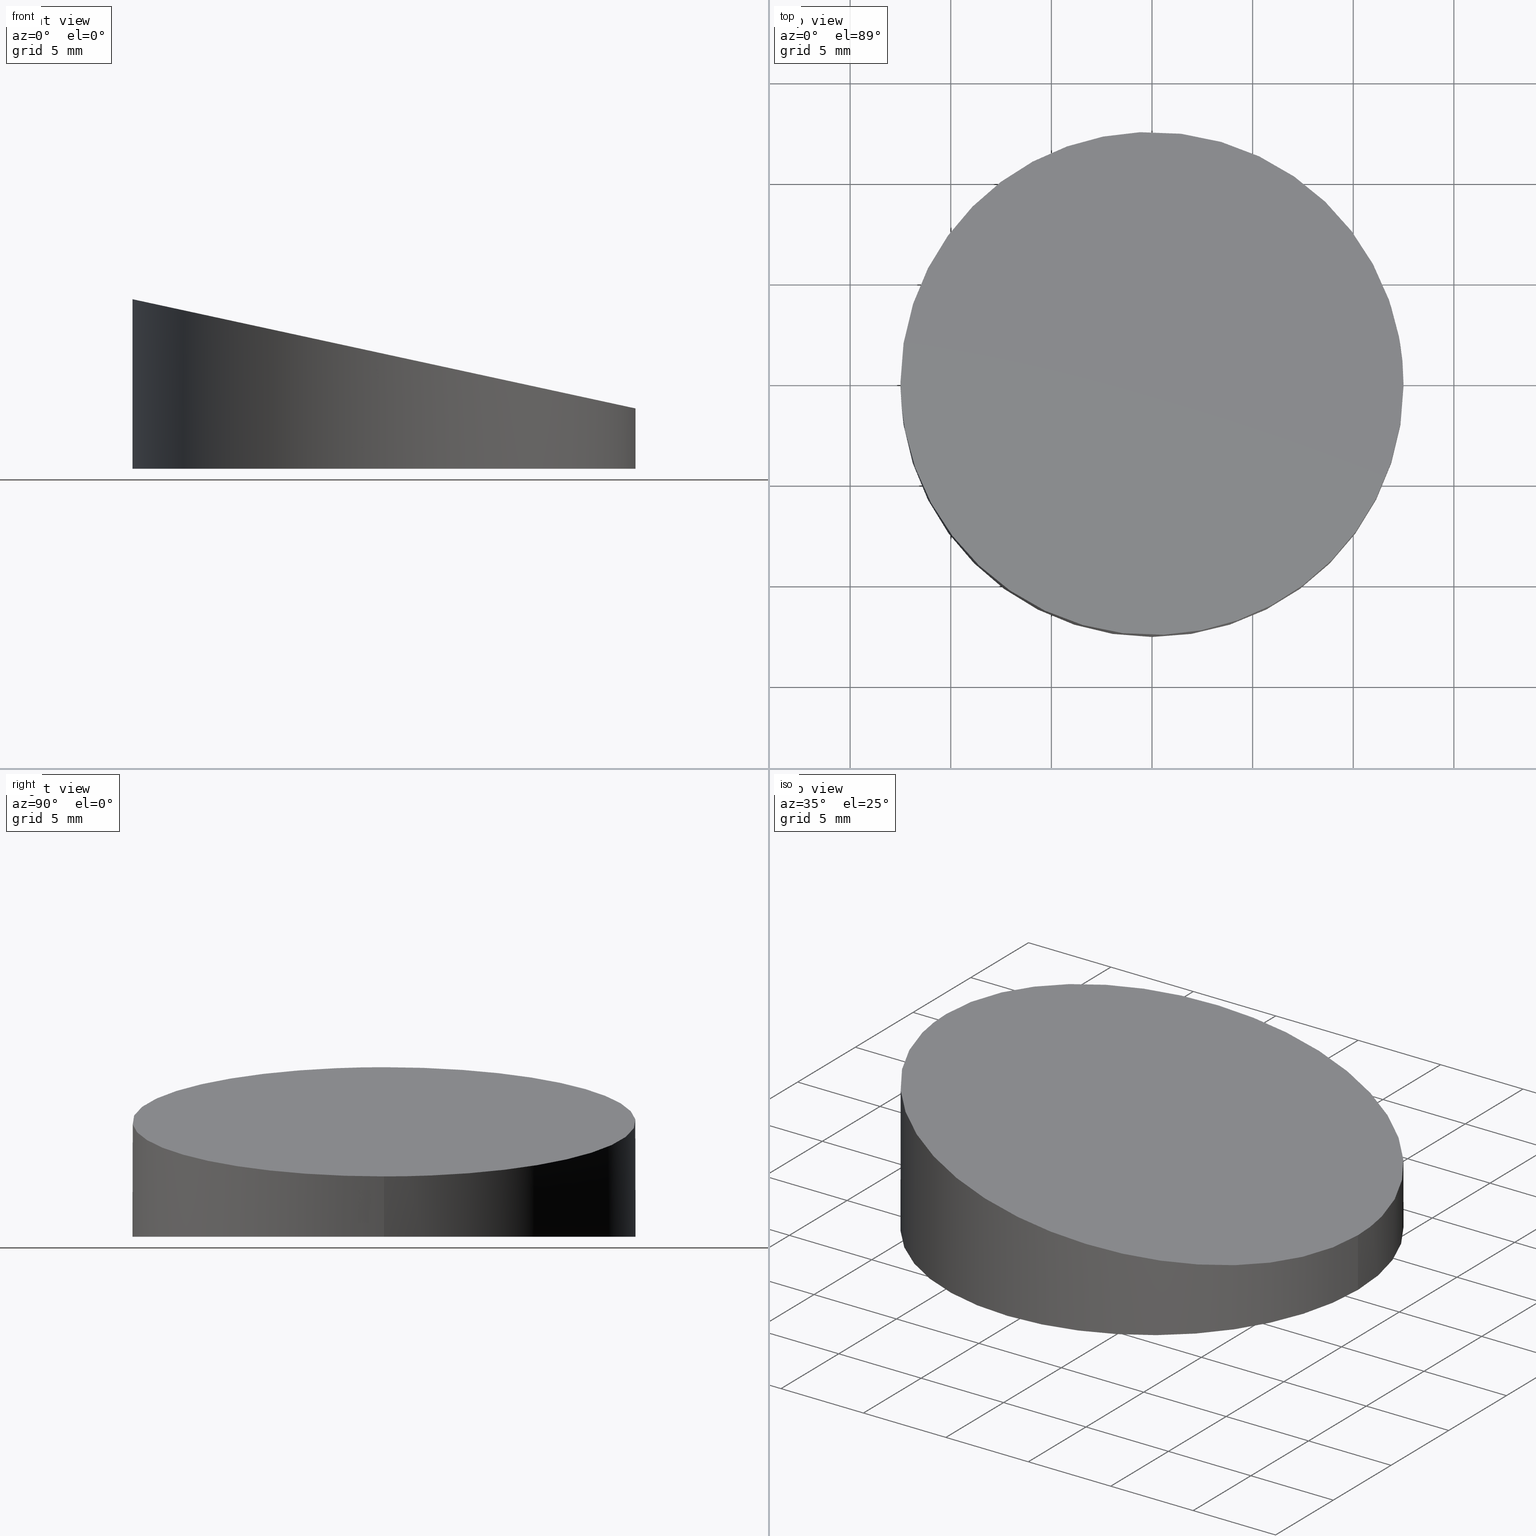
[diagram: canonical four-view strip — front | top / right | iso, engineering-drawing reading convention]
A machine part, canonical four-view strip (front | top / right | iso — engineering-drawing reading convention). The complete STEP part file that produces these views, byte-faithful:
ISO-10303-21;
HEADER;
FILE_DESCRIPTION (( 'STEP AP203' ),
    '1' );
FILE_NAME ('373536.STEP',
    '2019-07-24T09:27:33',
    ( '' ),
    ( '' ),
    'SwSTEP 2.0',
    'SolidWorks 2016',
    '' );
FILE_SCHEMA (( 'CONFIG_CONTROL_DESIGN' ));
ENDSEC;

DATA;
#1 = CALENDAR_DATE ( 2019, 24, 7 ) ;
#2 = APPROVAL_STATUS ( 'not_yet_approved' ) ;
#3 = SECURITY_CLASSIFICATION_LEVEL ( 'unclassified' ) ;
#4 = APPROVAL_STATUS ( 'not_yet_approved' ) ;
#5 = DATE_AND_TIME ( #152, #37 ) ;
#6 = PERSON_AND_ORGANIZATION_ROLE ( 'creator' ) ;
#7 = PERSON_AND_ORGANIZATION_ROLE ( 'design_owner' ) ;
#8 = CC_DESIGN_SECURITY_CLASSIFICATION ( #174, ( #60 ) ) ;
#9 = LOCAL_TIME ( 17, 27, 33.00000000000000000, #70 ) ;
#10 = PRODUCT_DEFINITION_SHAPE ( 'NONE', 'NONE',  #162 ) ;
#11 = LOCAL_TIME ( 17, 27, 33.00000000000000000, #46 ) ;
#12 = FACE_OUTER_BOUND ( 'NONE', #56, .T. ) ;
#13 = CARTESIAN_POINT ( 'NONE',  ( 0.0000000000000000000, 0.0000000000000000000, 0.0000000000000000000 ) ) ;
#14 = DIRECTION ( 'NONE',  ( -0.2121776721564465600, 0.0000000000000000000, -0.9772311064626788600 ) ) ;
#15 = APPROVAL_DATE_TIME ( #90, #96 ) ;
#16 = FACE_OUTER_BOUND ( 'NONE', #145, .T. ) ;
#17 = CARTESIAN_POINT ( 'NONE',  ( 12.49999999999999600, 1.530808498934191100E-015, 0.0000000000000000000 ) ) ;
#18 = CC_DESIGN_APPROVAL ( #220, ( #21 ) ) ;
#19 = MECHANICAL_CONTEXT ( 'NONE', #40, 'mechanical' ) ;
#20 = DATE_TIME_ROLE ( 'classification_date' ) ;
#21 = PRODUCT_DEFINITION ( 'δ֪', '', #60, #53 ) ;
#22 = PERSON_AND_ORGANIZATION_ROLE ( 'creator' ) ;
#23 = CARTESIAN_POINT ( 'NONE',  ( 12.49999999999999600, 1.530808498934191100E-015, 10.00000000000000000 ) ) ;
#24 = VECTOR ( 'NONE', #67, 1000.000000000000000 ) ;
#25 = DATE_AND_TIME ( #41, #52 ) ;
#26 = LINE ( 'NONE', #171, #79 ) ;
#27 = CC_DESIGN_DATE_AND_TIME_ASSIGNMENT ( #59, #165, ( #174 ) ) ;
#28 = PRODUCT_DEFINITION_SHAPE ( 'NONE', 'NONE',  #21 ) ;
#29 = CC_DESIGN_PERSON_AND_ORGANIZATION_ASSIGNMENT ( #211, #202, ( #162 ) ) ;
#30 = PLANE ( 'NONE',  #183 ) ;
#31 = CALENDAR_DATE ( 2019, 24, 7 ) ;
#32 = PERSON_AND_ORGANIZATION ( #85, #150 ) ;
#33 = CYLINDRICAL_SURFACE ( 'NONE', #102, 12.49999999999999600 ) ;
#34 = CC_DESIGN_DATE_AND_TIME_ASSIGNMENT ( #25, #223, ( #21 ) ) ;
#35 = COORDINATED_UNIVERSAL_TIME_OFFSET ( 8, 0, .AHEAD. ) ;
#36 = LINE ( 'NONE', #23, #24 ) ;
#37 = LOCAL_TIME ( 17, 27, 33.00000000000000000, #177 ) ;
#38 = APPLICATION_PROTOCOL_DEFINITION ( 'international standard', 'config_control_design', 1994, #141 ) ;
#39 = DIRECTION ( 'NONE',  ( 0.0000000000000000000, 0.0000000000000000000, 1.000000000000000000 ) ) ;
#40 = APPLICATION_CONTEXT ( 'configuration controlled 3d designs of mechanical parts and assemblies' ) ;
#41 = CALENDAR_DATE ( 2019, 24, 7 ) ;
#42 = ORIENTED_EDGE ( 'NONE', *, *, #189, .F. ) ;
#43 = APPROVAL_STATUS ( 'not_yet_approved' ) ;
#44 = SECURITY_CLASSIFICATION ( '', '', #3 ) ;
#45 = APPROVAL_DATE_TIME ( #218, #132 ) ;
#46 = COORDINATED_UNIVERSAL_TIME_OFFSET ( 8, 0, .AHEAD. ) ;
#47 = CC_DESIGN_DATE_AND_TIME_ASSIGNMENT ( #161, #221, ( #162 ) ) ;
#48 = COORDINATED_UNIVERSAL_TIME_OFFSET ( 8, 0, .AHEAD. ) ;
#49 = ORIENTED_EDGE ( 'NONE', *, *, #233, .F. ) ;
#50 = CC_DESIGN_APPROVAL ( #140, ( #174 ) ) ;
#51 = ADVANCED_FACE ( 'NONE', ( #12 ), #155, .F. ) ;
#52 = LOCAL_TIME ( 17, 27, 33.00000000000000000, #98 ) ;
#53 = DESIGN_CONTEXT ( 'detailed design', #81, 'design' ) ;
#54 = CARTESIAN_POINT ( 'NONE',  ( 0.0000000000000000000, 0.0000000000000000000, 0.0000000000000000000 ) ) ;
#55 = APPROVAL_PERSON_ORGANIZATION ( #228, #140, #225 ) ;
#56 = EDGE_LOOP ( 'NONE', ( #42, #231 ) ) ;
#57 = CARTESIAN_POINT ( 'NONE',  ( 0.0000000000000000000, 0.0000000000000000000, 0.0000000000000000000 ) ) ;
#58 = ADVANCED_FACE ( 'NONE', ( #16 ), #30, .F. ) ;
#59 = DATE_AND_TIME ( #1, #215 ) ;
#60 = PRODUCT_DEFINITION_FORMATION_WITH_SPECIFIED_SOURCE ( '�κ�', '', #114, .NOT_KNOWN. ) ;
#61 = APPROVAL_ROLE ( '' ) ;
#62 = DIRECTION ( 'NONE',  ( -1.000000000000000000, 0.0000000000000000000, 0.0000000000000000000 ) ) ;
#63 = PERSON_AND_ORGANIZATION ( #85, #150 ) ;
#64 = APPROVAL_ROLE ( '' ) ;
#65 = MANIFOLD_SOLID_BREP ( '�г�-����1', #113 ) ;
#66 = CC_DESIGN_APPROVAL ( #96, ( #162 ) ) ;
#67 = DIRECTION ( 'NONE',  ( -0.0000000000000000000, -0.0000000000000000000, -1.000000000000000000 ) ) ;
#68 = EDGE_LOOP ( 'NONE', ( #49, #181, #92, #166 ) ) ;
#69 = APPROVAL_PERSON_ORGANIZATION ( #244, #132, #160 ) ;
#70 = COORDINATED_UNIVERSAL_TIME_OFFSET ( 8, 0, .AHEAD. ) ;
#71 = AXIS2_PLACEMENT_3D ( 'NONE', #253, #236, #122 ) ;
#72 = CC_DESIGN_APPROVAL ( #107, ( #76 ) ) ;
#73 = CARTESIAN_POINT ( 'NONE',  ( -12.49999999999999600, 0.0000000000000000000, 8.428032088654909200 ) ) ;
#74 = DATE_AND_TIME ( #126, #250 ) ;
#75 = CARTESIAN_POINT ( 'NONE',  ( -12.50000000000000500, 25.00000000000000000, 8.428032088654910900 ) ) ;
#76 = PRODUCT_DEFINITION_FORMATION_WITH_SPECIFIED_SOURCE ( '�κ�', '', #111, .NOT_KNOWN. ) ;
#77 = CARTESIAN_POINT ( 'NONE',  ( -12.49999999999999600, 0.0000000000000000000, 8.428032088654909200 ) ) ;
#78 = ADVANCED_BREP_SHAPE_REPRESENTATION ( '373536', ( #65, #217 ), #240 ) ;
#79 = VECTOR ( 'NONE', #151, 1000.000000000000000 ) ;
#80 = PERSON_AND_ORGANIZATION ( #85, #150 ) ;
#81 = APPLICATION_CONTEXT ( 'configuration controlled 3d designs of mechanical parts and assemblies' ) ;
#82 = APPLICATION_CONTEXT ( 'configuration controlled 3d designs of mechanical parts and assemblies' ) ;
#83 = CARTESIAN_POINT ( 'NONE',  ( 0.0000000000000000000, 0.0000000000000000000, 0.0000000000000000000 ) ) ;
#84 = EDGE_CURVE ( 'NONE', #173, #185, #26, .T. ) ;
#85 = PERSON ( 'δָ��', 'δָ��', 'δָ��', ('δָ��'), ('δָ��'), ('δָ��') ) ;
#86 = APPROVAL_PERSON_ORGANIZATION ( #94, #192, #106 ) ;
#87 = DIRECTION ( 'NONE',  ( 1.000000000000000000, 0.0000000000000000000, 0.0000000000000000000 ) ) ;
#88 = CC_DESIGN_PERSON_AND_ORGANIZATION_ASSIGNMENT ( #105, #142, ( #44 ) ) ;
#89 = PERSON_AND_ORGANIZATION ( #85, #150 ) ;
#90 = DATE_AND_TIME ( #139, #9 ) ;
#91 = AXIS2_PLACEMENT_3D ( 'NONE', #57, #195, #235 ) ;
#92 = ORIENTED_EDGE ( 'NONE', *, *, #84, .T. ) ;
#93 = DIRECTION ( 'NONE',  ( 1.000000000000000000, 0.0000000000000000000, -0.0000000000000000000 ) ) ;
#94 = PERSON_AND_ORGANIZATION ( #85, #150 ) ;
#95 = CARTESIAN_POINT ( 'NONE',  ( 12.49999999999999600, 1.530808498934191100E-015, 3.000000000000000000 ) ) ;
#96 = APPROVAL ( #176, 'δָ��' ) ;
#97 = DIRECTION ( 'NONE',  ( 0.0000000000000000000, 0.0000000000000000000, 1.000000000000000000 ) ) ;
#98 = COORDINATED_UNIVERSAL_TIME_OFFSET ( 8, 0, .AHEAD. ) ;
#99 = ORIENTED_EDGE ( 'NONE', *, *, #233, .T. ) ;
#100 = AXIS2_PLACEMENT_3D ( 'NONE', #13, #117, #93 ) ;
#101 = APPROVAL_PERSON_ORGANIZATION ( #89, #96, #61 ) ;
#102 = AXIS2_PLACEMENT_3D ( 'NONE', #243, #178, #62 ) ;
#103 = APPROVAL_ROLE ( '' ) ;
#104 = APPLICATION_PROTOCOL_DEFINITION ( 'international standard', 'config_control_design', 1994, #82 ) ;
#105 = PERSON_AND_ORGANIZATION ( #85, #150 ) ;
#106 = APPROVAL_ROLE ( '' ) ;
#107 = APPROVAL ( #203, 'δָ��' ) ;
#108 = DIRECTION ( 'NONE',  ( 1.000000000000000000, 0.0000000000000000000, 0.0000000000000000000 ) ) ;
#109 = APPLICATION_PROTOCOL_DEFINITION ( 'international standard', 'config_control_design', 1994, #40 ) ;
#110 = PERSON_AND_ORGANIZATION ( #85, #150 ) ;
#111 = PRODUCT ( '373536', '373536', '', ( #130 ) ) ;
#112 = APPROVAL_DATE_TIME ( #149, #107 ) ;
#113 = CLOSED_SHELL ( 'NONE', ( #219, #212, #51, #58 ) ) ;
#114 = PRODUCT ( '373536', '373536', '', ( #19 ) ) ;
#115 = CIRCLE ( 'NONE', #170, 12.49999999999999600 ) ;
#116 = CC_DESIGN_PERSON_AND_ORGANIZATION_ASSIGNMENT ( #134, #6, ( #60 ) ) ;
#117 = DIRECTION ( 'NONE',  ( 0.0000000000000000000, 0.0000000000000000000, 1.000000000000000000 ) ) ;
#118 = LOCAL_TIME ( 17, 27, 33.00000000000000000, #187 ) ;
#119 = VERTEX_POINT ( 'NONE', #17 ) ;
#120 = CARTESIAN_POINT ( 'NONE',  ( 12.49999999999999600, -25.00000000000000000, 3.000000000000000000 ) ) ;
#121 = CC_DESIGN_PERSON_AND_ORGANIZATION_ASSIGNMENT ( #156, #239, ( #76 ) ) ;
#122 = DIRECTION ( 'NONE',  ( -1.000000000000000000, 0.0000000000000000000, 0.0000000000000000000 ) ) ;
#123 = ORIENTED_EDGE ( 'NONE', *, *, #193, .T. ) ;
#124 = DESIGN_CONTEXT ( 'detailed design', #141, 'design' ) ;
#125 = PERSON_AND_ORGANIZATION_ROLE ( 'design_supplier' ) ;
#126 = CALENDAR_DATE ( 2019, 24, 7 ) ;
#127 = VERTEX_POINT ( 'NONE', #175 ) ;
#128 = APPLICATION_PROTOCOL_DEFINITION ( 'international standard', 'config_control_design', 1994, #81 ) ;
#129 =( NAMED_UNIT ( * ) SI_UNIT ( $, .STERADIAN. ) SOLID_ANGLE_UNIT ( ) );
#130 = MECHANICAL_CONTEXT ( 'NONE', #82, 'mechanical' ) ;
#131 = DATE_AND_TIME ( #205, #252 ) ;
#132 = APPROVAL ( #4, 'δָ��' ) ;
#133 = LOCAL_TIME ( 17, 27, 33.00000000000000000, #199 ) ;
#134 = PERSON_AND_ORGANIZATION ( #85, #150 ) ;
#135 = CC_DESIGN_PERSON_AND_ORGANIZATION_ASSIGNMENT ( #63, #147, ( #114 ) ) ;
#136 = FACE_OUTER_BOUND ( 'NONE', #242, .T. ) ;
#137 = DIRECTION ( 'NONE',  ( -0.9772311064626787400, 0.0000000000000000000, 0.2121776721564465300 ) ) ;
#138 = PERSON_AND_ORGANIZATION ( #85, #150 ) ;
#139 = CALENDAR_DATE ( 2019, 24, 7 ) ;
#140 = APPROVAL ( #43, 'δָ��' ) ;
#141 = APPLICATION_CONTEXT ( 'configuration controlled 3d designs of mechanical parts and assemblies' ) ;
#142 = PERSON_AND_ORGANIZATION_ROLE ( 'classification_officer' ) ;
#143 = PERSON_AND_ORGANIZATION_ROLE ( 'classification_officer' ) ;
#144 = CALENDAR_DATE ( 2019, 24, 7 ) ;
#145 = EDGE_LOOP ( 'NONE', ( #248, #163 ) ) ;
#146 = CC_DESIGN_PERSON_AND_ORGANIZATION_ASSIGNMENT ( #32, #125, ( #76 ) ) ;
#147 = PERSON_AND_ORGANIZATION_ROLE ( 'design_owner' ) ;
#148 = EDGE_CURVE ( 'NONE', #173, #127, #198, .T. ) ;
#149 = DATE_AND_TIME ( #200, #11 ) ;
#150 = ORGANIZATION ( 'δָ��', 'δָ��', '' ) ;
#151 = DIRECTION ( 'NONE',  ( -0.0000000000000000000, -0.0000000000000000000, -1.000000000000000000 ) ) ;
#152 = CALENDAR_DATE ( 2019, 24, 7 ) ;
#153 = CC_DESIGN_APPROVAL ( #132, ( #44 ) ) ;
#154 = CARTESIAN_POINT ( 'NONE',  ( -12.49999999999999600, 0.0000000000000000000, 8.428032088654909200 ) ) ;
#155 = PLANE ( 'NONE',  #100 ) ;
#156 = PERSON_AND_ORGANIZATION ( #85, #150 ) ;
#157 = ORIENTED_EDGE ( 'NONE', *, *, #84, .F. ) ;
#158 = CC_DESIGN_DATE_AND_TIME_ASSIGNMENT ( #131, #20, ( #44 ) ) ;
#159 = CALENDAR_DATE ( 2019, 24, 7 ) ;
#160 = APPROVAL_ROLE ( '' ) ;
#161 = DATE_AND_TIME ( #159, #118 ) ;
#162 = PRODUCT_DEFINITION ( 'δ֪', '', #76, #124 ) ;
#163 = ORIENTED_EDGE ( 'NONE', *, *, #210, .F. ) ;
#164 =( LENGTH_UNIT ( ) NAMED_UNIT ( * ) SI_UNIT ( .MILLI., .METRE. ) );
#165 = DATE_TIME_ROLE ( 'classification_date' ) ;
#166 = ORIENTED_EDGE ( 'NONE', *, *, #189, .T. ) ;
#167 = PRODUCT_RELATED_PRODUCT_CATEGORY ( 'detail', '', ( #111 ) ) ;
#168 = APPROVAL_DATE_TIME ( #5, #192 ) ;
#169 = CC_DESIGN_SECURITY_CLASSIFICATION ( #44, ( #76 ) ) ;
#170 = AXIS2_PLACEMENT_3D ( 'NONE', #54, #97, #234 ) ;
#171 = CARTESIAN_POINT ( 'NONE',  ( -12.49999999999999600, 0.0000000000000000000, 10.00000000000000000 ) ) ;
#172 = DATE_AND_TIME ( #144, #194 ) ;
#173 = VERTEX_POINT ( 'NONE', #154 ) ;
#174 = SECURITY_CLASSIFICATION ( '', '', #206 ) ;
#175 = CARTESIAN_POINT ( 'NONE',  ( 12.49999999999999600, 1.530808498934191100E-015, 3.000000000000000000 ) ) ;
#176 = APPROVAL_STATUS ( 'not_yet_approved' ) ;
#177 = COORDINATED_UNIVERSAL_TIME_OFFSET ( 8, 0, .AHEAD. ) ;
#178 = DIRECTION ( 'NONE',  ( -0.0000000000000000000, -0.0000000000000000000, -1.000000000000000000 ) ) ;
#179 = UNCERTAINTY_MEASURE_WITH_UNIT (LENGTH_MEASURE( 1.000000000000000100E-005 ), #164, 'distance_accuracy_value', 'NONE');
#180 = AXIS2_PLACEMENT_3D ( 'NONE', #227, #39, #108 ) ;
#181 = ORIENTED_EDGE ( 'NONE', *, *, #210, .T. ) ;
#182 =( NAMED_UNIT ( * ) PLANE_ANGLE_UNIT ( ) SI_UNIT ( $, .RADIAN. ) );
#183 = AXIS2_PLACEMENT_3D ( 'NONE', #120, #14, #137 ) ;
#184 = APPROVAL_DATE_TIME ( #74, #220 ) ;
#185 = VERTEX_POINT ( 'NONE', #190 ) ;
#186 = CC_DESIGN_PERSON_AND_ORGANIZATION_ASSIGNMENT ( #138, #143, ( #174 ) ) ;
#187 = COORDINATED_UNIVERSAL_TIME_OFFSET ( 8, 0, .AHEAD. ) ;
#188 = CIRCLE ( 'NONE', #91, 12.49999999999999600 ) ;
#189 = EDGE_CURVE ( 'NONE', #185, #119, #115, .T. ) ;
#190 = CARTESIAN_POINT ( 'NONE',  ( -12.49999999999999600, 0.0000000000000000000, 0.0000000000000000000 ) ) ;
#191 = PERSON_AND_ORGANIZATION ( #85, #150 ) ;
#192 = APPROVAL ( #224, 'δָ��' ) ;
#193 = EDGE_CURVE ( 'NONE', #119, #185, #188, .T. ) ;
#194 = LOCAL_TIME ( 17, 27, 33.00000000000000000, #213 ) ;
#195 = DIRECTION ( 'NONE',  ( 0.0000000000000000000, 0.0000000000000000000, 1.000000000000000000 ) ) ;
#196 = ORIENTED_EDGE ( 'NONE', *, *, #148, .T. ) ;
#197 = CARTESIAN_POINT ( 'NONE',  ( 12.50000000000000000, -25.00000000000000000, 3.000000000000000400 ) ) ;
#198 =( BOUNDED_CURVE ( )  B_SPLINE_CURVE ( 3, ( #73, #75, #251, #95 ),
 .UNSPECIFIED., .F., .F. ) 
 B_SPLINE_CURVE_WITH_KNOTS ( ( 4, 4 ),
 ( 3.141592653589793100, 6.283185307179586200 ),
 .UNSPECIFIED. ) 
 CURVE ( )  GEOMETRIC_REPRESENTATION_ITEM ( )  RATIONAL_B_SPLINE_CURVE ( ( 1.000000000000000000, 0.3333333333333333700, 0.3333333333333333700, 1.000000000000000000 ) ) 
 REPRESENTATION_ITEM ( '' )  );
#199 = COORDINATED_UNIVERSAL_TIME_OFFSET ( 8, 0, .AHEAD. ) ;
#200 = CALENDAR_DATE ( 2019, 24, 7 ) ;
#201 = CARTESIAN_POINT ( 'NONE',  ( -12.50000000000000000, -25.00000000000000000, 8.428032088654910900 ) ) ;
#202 = PERSON_AND_ORGANIZATION_ROLE ( 'creator' ) ;
#203 = APPROVAL_STATUS ( 'not_yet_approved' ) ;
#204 = PERSON_AND_ORGANIZATION_ROLE ( 'design_supplier' ) ;
#205 = CALENDAR_DATE ( 2019, 24, 7 ) ;
#206 = SECURITY_CLASSIFICATION_LEVEL ( 'unclassified' ) ;
#207 = DIRECTION ( 'NONE',  ( 0.0000000000000000000, 0.0000000000000000000, 1.000000000000000000 ) ) ;
#208 = PERSON_AND_ORGANIZATION ( #85, #150 ) ;
#209 = CC_DESIGN_PERSON_AND_ORGANIZATION_ASSIGNMENT ( #191, #7, ( #111 ) ) ;
#210 = EDGE_CURVE ( 'NONE', #127, #173, #230, .T. ) ;
#211 = PERSON_AND_ORGANIZATION ( #85, #150 ) ;
#212 = ADVANCED_FACE ( 'NONE', ( #216 ), #238, .T. ) ;
#213 = COORDINATED_UNIVERSAL_TIME_OFFSET ( 8, 0, .AHEAD. ) ;
#214 = CARTESIAN_POINT ( 'NONE',  ( 12.49999999999999600, 1.530808498934191100E-015, 3.000000000000000000 ) ) ;
#215 = LOCAL_TIME ( 17, 27, 33.00000000000000000, #35 ) ;
#216 = FACE_OUTER_BOUND ( 'NONE', #68, .T. ) ;
#217 = AXIS2_PLACEMENT_3D ( 'NONE', #83, #207, #87 ) ;
#218 = DATE_AND_TIME ( #31, #133 ) ;
#219 = ADVANCED_FACE ( 'NONE', ( #136 ), #33, .T. ) ;
#220 = APPROVAL ( #2, 'δָ��' ) ;
#221 = DATE_TIME_ROLE ( 'creation_date' ) ;
#222 = APPROVAL_PERSON_ORGANIZATION ( #208, #107, #103 ) ;
#223 = DATE_TIME_ROLE ( 'creation_date' ) ;
#224 = APPROVAL_STATUS ( 'not_yet_approved' ) ;
#225 = APPROVAL_ROLE ( '' ) ;
#226 = PRODUCT_RELATED_PRODUCT_CATEGORY ( 'detail', '', ( #114 ) ) ;
#227 = CARTESIAN_POINT ( 'NONE',  ( 0.0000000000000000000, 0.0000000000000000000, 0.0000000000000000000 ) ) ;
#228 = PERSON_AND_ORGANIZATION ( #85, #150 ) ;
#229 = CC_DESIGN_PERSON_AND_ORGANIZATION_ASSIGNMENT ( #247, #204, ( #60 ) ) ;
#230 =( BOUNDED_CURVE ( )  B_SPLINE_CURVE ( 3, ( #214, #197, #201, #77 ),
 .UNSPECIFIED., .F., .F. ) 
 B_SPLINE_CURVE_WITH_KNOTS ( ( 4, 4 ),
 ( 0.0000000000000000000, 3.141592653589793100 ),
 .UNSPECIFIED. ) 
 CURVE ( )  GEOMETRIC_REPRESENTATION_ITEM ( )  RATIONAL_B_SPLINE_CURVE ( ( 1.000000000000000000, 0.3333333333333333700, 0.3333333333333333700, 1.000000000000000000 ) ) 
 REPRESENTATION_ITEM ( '' )  );
#231 = ORIENTED_EDGE ( 'NONE', *, *, #193, .F. ) ;
#232 = APPROVAL_PERSON_ORGANIZATION ( #110, #220, #64 ) ;
#233 = EDGE_CURVE ( 'NONE', #127, #119, #36, .T. ) ;
#234 = DIRECTION ( 'NONE',  ( 1.000000000000000000, 0.0000000000000000000, 0.0000000000000000000 ) ) ;
#235 = DIRECTION ( 'NONE',  ( 1.000000000000000000, 0.0000000000000000000, 0.0000000000000000000 ) ) ;
#236 = DIRECTION ( 'NONE',  ( -0.0000000000000000000, -0.0000000000000000000, -1.000000000000000000 ) ) ;
#237 = COORDINATED_UNIVERSAL_TIME_OFFSET ( 8, 0, .AHEAD. ) ;
#238 = CYLINDRICAL_SURFACE ( 'NONE', #71, 12.49999999999999600 ) ;
#239 = PERSON_AND_ORGANIZATION_ROLE ( 'creator' ) ;
#240 =( GEOMETRIC_REPRESENTATION_CONTEXT ( 3 ) GLOBAL_UNCERTAINTY_ASSIGNED_CONTEXT ( ( #179 ) ) GLOBAL_UNIT_ASSIGNED_CONTEXT ( ( #164, #182, #129 ) ) REPRESENTATION_CONTEXT ( 'NONE', 'WORKASPACE' ) );
#241 = SHAPE_DEFINITION_REPRESENTATION ( #10, #78 ) ;
#242 = EDGE_LOOP ( 'NONE', ( #196, #99, #123, #157 ) ) ;
#243 = CARTESIAN_POINT ( 'NONE',  ( 0.0000000000000000000, 0.0000000000000000000, 10.00000000000000000 ) ) ;
#244 = PERSON_AND_ORGANIZATION ( #85, #150 ) ;
#245 = APPROVAL_DATE_TIME ( #172, #140 ) ;
#246 = CC_DESIGN_PERSON_AND_ORGANIZATION_ASSIGNMENT ( #80, #22, ( #21 ) ) ;
#247 = PERSON_AND_ORGANIZATION ( #85, #150 ) ;
#248 = ORIENTED_EDGE ( 'NONE', *, *, #148, .F. ) ;
#249 = CC_DESIGN_APPROVAL ( #192, ( #60 ) ) ;
#250 = LOCAL_TIME ( 17, 27, 33.00000000000000000, #237 ) ;
#251 = CARTESIAN_POINT ( 'NONE',  ( 12.50000000000000000, 25.00000000000000000, 3.000000000000000400 ) ) ;
#252 = LOCAL_TIME ( 17, 27, 33.00000000000000000, #48 ) ;
#253 = CARTESIAN_POINT ( 'NONE',  ( 0.0000000000000000000, 0.0000000000000000000, 10.00000000000000000 ) ) ;
ENDSEC;
END-ISO-10303-21;
